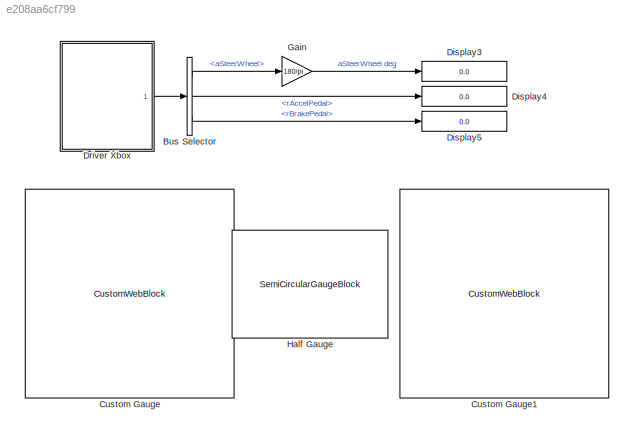
MODEL slx_e208aa6cf799
KIND model
CONFIG AbsTol = auto
CONFIG EnableMultiTasking = off
CONFIG FixedStep = auto
CONFIG MaxStep = auto
CONFIG MinStep = auto
CONFIG RelTol = 1e-3
CONFIG SampleTimeConstraint = Unconstrained
CONFIG SolverName = VariableStepAuto
CONFIG StartTime = 0.0
CONFIG StopTime = inf
BLOCK [BusSelector] Bus Selector
  OutputSignals = aSteerWheel,rAccelPedal,rBrakePedal
  Ports = [1, 3]
BLOCK [CustomWebBlock] Custom Gauge
  Configuration = {"components":[{"name":"CircularScaleComponent","settings":{"bounds":{"max":1,"min":0,"tickInterval":"auto"},"direction":"cw","flipLimits":0,"innerRadius":0.5279616348635409,"internalTickHeightScaleFactor":1,"labelColor":[250,245,200],"labelFont":{"font":"Arial","fontSize":12},"labelTransparency":1,"labelTrasparency":1,"minorTickHeightScaleFactor":0.2,"needleImage":{"size":[1890,567],"src":"data:i...<+15637ch>
  LabelPosition = Bottom
  ShowInitialText = on
BLOCK [CustomWebBlock] Custom Gauge1
  Configuration = {"components":[{"name":"CircularScaleComponent","settings":{"bounds":{"max":1,"min":0,"tickInterval":"auto"},"direction":"cw","flipLimits":0,"innerRadius":0.5279616348635409,"internalTickHeightScaleFactor":1,"labelColor":[250,245,200],"labelFont":{"font":"Arial","fontSize":12},"labelTransparency":1,"labelTrasparency":1,"minorTickHeightScaleFactor":0.2,"needleImage":{"size":[1890,567],"src":"data:i...<+15637ch>
  ShowInitialText = on
BLOCK [Display] Display3
  Decimation = 1
  Ports = [1]
BLOCK [Display] Display4
  Decimation = 1
  Ports = [1]
BLOCK [Display] Display5
  Decimation = 1
  Ports = [1]
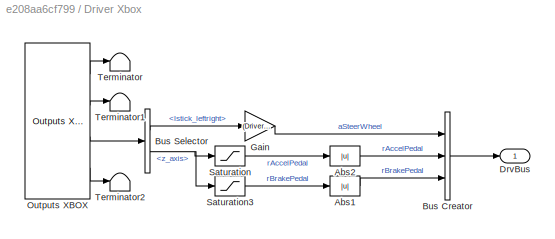
BLOCK [SubSystem] Driver Xbox
  Ports = [0, 1]
  RequestExecContextInheritance = off
BLOCK [Abs] Driver Xbox/Abs1
  SaturateOnIntegerOverflow = off
  ZeroCross = off
BLOCK [Abs] Driver Xbox/Abs2
  SaturateOnIntegerOverflow = off
  ZeroCross = off
BLOCK [BusCreator] Driver Xbox/Bus Creator
  DisplayOption = bar
  InheritFromInputs = on
  Inputs = 3
  Ports = [3, 1]
BLOCK [BusSelector] Driver Xbox/Bus Selector
  OutputSignals = lstick_leftright,z_axis
  Ports = [1, 2]
BLOCK [Outport] Driver Xbox/DrvBus
  VectorParamsAs1DForOutWhenUnconnected = off
BLOCK [Gain] Driver Xbox/Gain
  Gain = (Driver.Lateral.aMaxSteer.Value/180*pi)*0.95
BLOCK [Reference] Driver Xbox/Outputs XBOX  REF=Gamepad_Xbox/Outputs Xbox
  Ports = [0, 4]
  SourceBlock = Gamepad_Xbox/Outputs Xbox
BLOCK [Saturate] Driver Xbox/Saturation
  LowerLimit = -1
  UpperLimit = 0
  ZeroCross = off
BLOCK [Saturate] Driver Xbox/Saturation3
  LowerLimit = 0
  UpperLimit = 1
  ZeroCross = off
BLOCK [Terminator] Driver Xbox/Terminator
BLOCK [Terminator] Driver Xbox/Terminator1
BLOCK [Terminator] Driver Xbox/Terminator2
BLOCK [Gain] Gain
  Gain = 180/pi
BLOCK [SemiCircularGaugeBlock] Half Gauge
  ScaleMax = 80
  ScaleMin = -80
LINE Bus Selector:1 -> Gain:1
LINE Bus Selector:2 -> Display4:1
LINE Bus Selector:3 -> Display5:1
LINE Driver Xbox/Abs1:1 -> Driver Xbox/Bus Creator:3
LINE Driver Xbox/Abs2:1 -> Driver Xbox/Bus Creator:2
LINE Driver Xbox/Bus Creator:1 -> Driver Xbox/DrvBus:1
LINE Driver Xbox/Bus Selector:1 -> Driver Xbox/Gain:1
NET Driver Xbox/Bus Selector:2 -> Driver Xbox/Saturation3:1, Driver Xbox/Saturation:1
LINE Driver Xbox/Gain:1 -> Driver Xbox/Bus Creator:1
LINE Driver Xbox/Outputs XBOX:1 -> Driver Xbox/Terminator:1
LINE Driver Xbox/Outputs XBOX:2 -> Driver Xbox/Terminator1:1
LINE Driver Xbox/Outputs XBOX:3 -> Driver Xbox/Bus Selector:1
LINE Driver Xbox/Outputs XBOX:4 -> Driver Xbox/Terminator2:1
LINE Driver Xbox/Saturation3:1 -> Driver Xbox/Abs1:1
LINE Driver Xbox/Saturation:1 -> Driver Xbox/Abs2:1
LINE Driver Xbox:1 -> Bus Selector:1
LINE Gain:1 -> Display3:1
note: NET lines group one-source signal fan-out (src -> all destinations, sorted); 1:1 wires keep LINE
